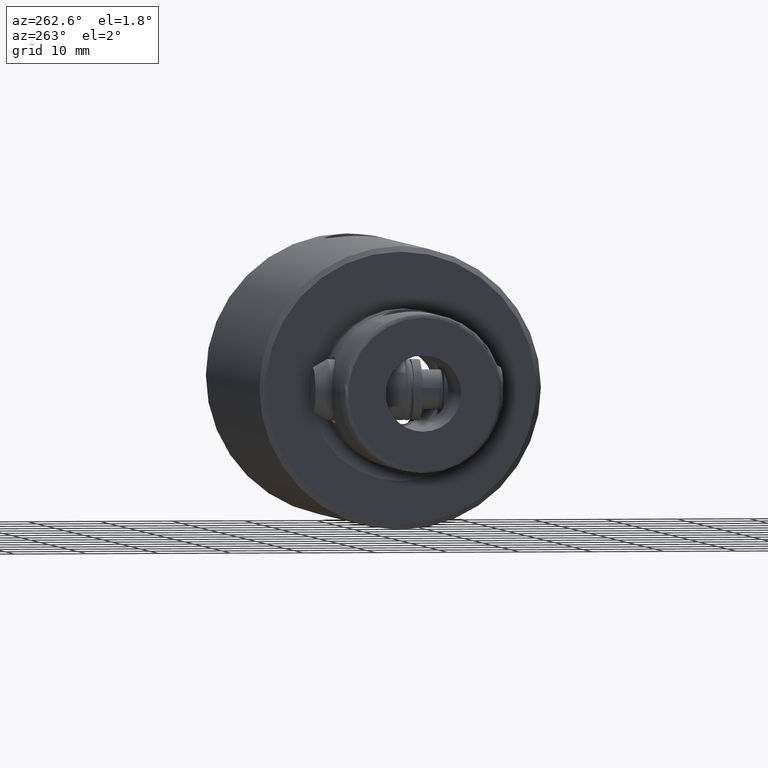
[diagram: clean part render]
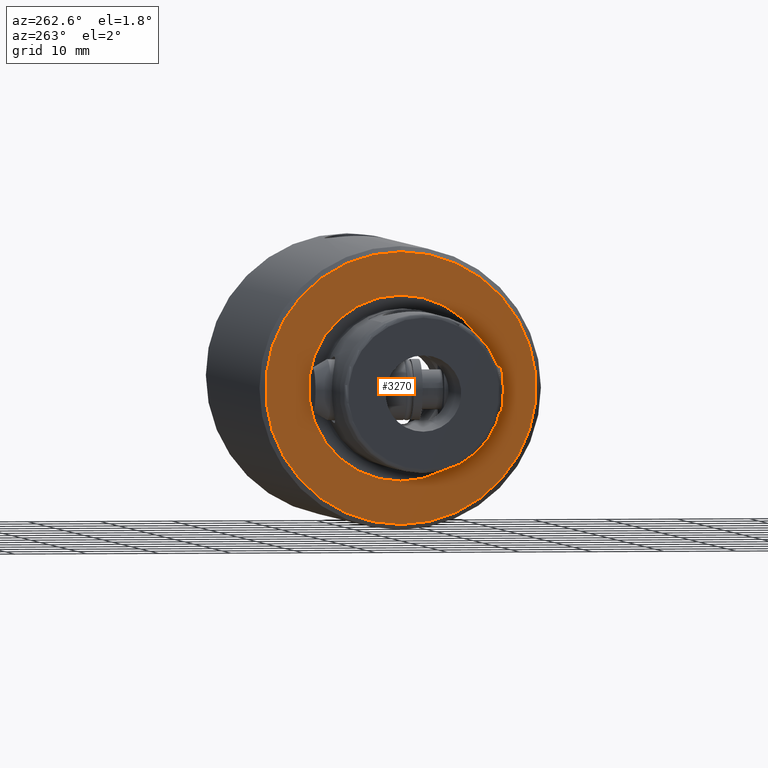
[diagram: same view with one face highlighted and labeled with its STEP entity id]
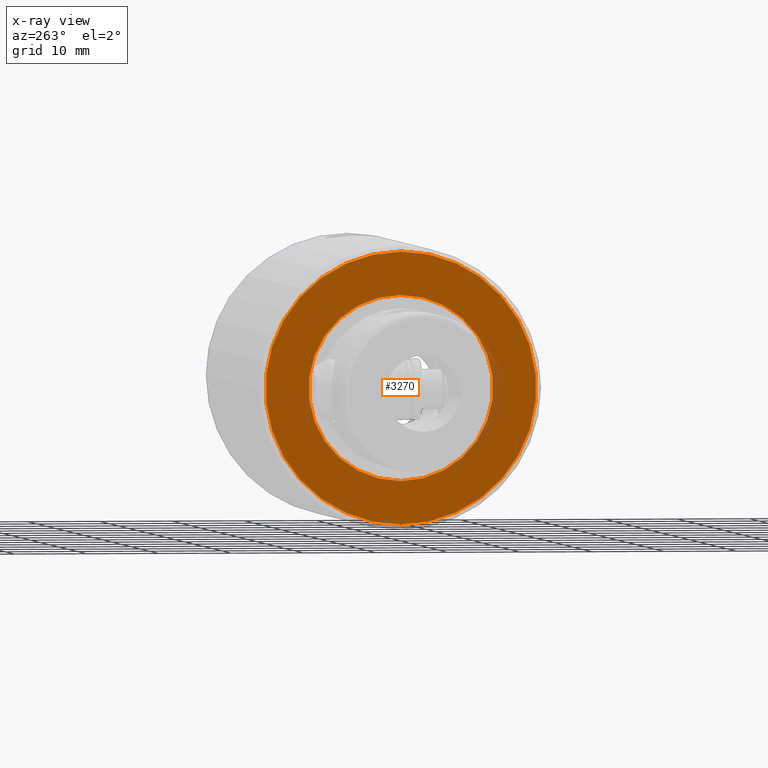
[diagram: x-ray of the same camera — body ghosted, the highlighted face saturated]
A machine part, auxiliary view. The second image highlights one B-rep face of the part: STEP entity #3270.
The next image is the same camera in x-ray: the body ghosted, the highlighted face saturated — about 3% of this face is hidden behind the body in this view.
In plain terms, the highlighted planar face has unit normal (-1, 0, 0).
Its self-contained STEP definition (entity closure, byte-faithful):
#44 = DIRECTION ( 'NONE',  ( 1.000000000000000000, 0.0000000000000000000, 0.0000000000000000000 ) ) ;
#102 = DIRECTION ( 'NONE',  ( 0.0000000000000000000, 0.0000000000000000000, 1.000000000000000000 ) ) ;
#122 = CARTESIAN_POINT ( 'NONE',  ( 0.0000000000000000000, 0.0000000000000000000, 60.00000000000000000 ) ) ;
#147 = ORIENTED_EDGE ( 'NONE', *, *, #819, .F. ) ;
#156 = CARTESIAN_POINT ( 'NONE',  ( 0.0000000000000000000, 0.0000000000000000000, 60.00000000000000000 ) ) ;
#226 = AXIS2_PLACEMENT_3D ( 'NONE', #742, #722, #422 ) ;
#311 = EDGE_CURVE ( 'NONE', #3363, #2003, #623, .T. ) ;
#422 = DIRECTION ( 'NONE',  ( 1.000000000000000000, 0.0000000000000000000, 0.0000000000000000000 ) ) ;
#536 = EDGE_CURVE ( 'NONE', #3169, #2762, #4428, .T. ) ;
#623 = CIRCLE ( 'NONE', #226, 18.75000000000000000 ) ;
#677 = CARTESIAN_POINT ( 'NONE',  ( 12.79524911219973200, 0.0000000000000000000, 60.00000000000000000 ) ) ;
#696 = CARTESIAN_POINT ( 'NONE',  ( -18.75000000000000000, 0.0000000000000000000, 60.00000000000000000 ) ) ;
#722 = DIRECTION ( 'NONE',  ( 0.0000000000000000000, 0.0000000000000000000, 1.000000000000000000 ) ) ;
#742 = CARTESIAN_POINT ( 'NONE',  ( 0.0000000000000000000, 0.0000000000000000000, 60.00000000000000000 ) ) ;
#819 = EDGE_CURVE ( 'NONE', #2762, #3169, #3747, .T. ) ;
#904 = CIRCLE ( 'NONE', #1204, 18.75000000000000000 ) ;
#1056 = CARTESIAN_POINT ( 'NONE',  ( 0.0000000000000000000, 0.0000000000000000000, 60.00000000000000000 ) ) ;
#1131 = ORIENTED_EDGE ( 'NONE', *, *, #536, .F. ) ;
#1167 = AXIS2_PLACEMENT_3D ( 'NONE', #2315, #2303, #2235 ) ;
#1204 = AXIS2_PLACEMENT_3D ( 'NONE', #1056, #3578, #1432 ) ;
#1205 = CARTESIAN_POINT ( 'NONE',  ( -12.79524911219973200, 1.566966086954841300E-015, 60.00000000000000000 ) ) ;
#1279 = DIRECTION ( 'NONE',  ( 1.000000000000000000, 0.0000000000000000000, 0.0000000000000000000 ) ) ;
#1303 = FACE_BOUND ( 'NONE', #3066, .T. ) ;
#1432 = DIRECTION ( 'NONE',  ( 1.000000000000000000, 0.0000000000000000000, 0.0000000000000000000 ) ) ;
#2003 = VERTEX_POINT ( 'NONE', #696 ) ;
#2072 = EDGE_LOOP ( 'NONE', ( #4019, #2193 ) ) ;
#2193 = ORIENTED_EDGE ( 'NONE', *, *, #311, .T. ) ;
#2235 = DIRECTION ( 'NONE',  ( 1.000000000000000000, 0.0000000000000000000, 0.0000000000000000000 ) ) ;
#2303 = DIRECTION ( 'NONE',  ( 0.0000000000000000000, 0.0000000000000000000, 1.000000000000000000 ) ) ;
#2315 = CARTESIAN_POINT ( 'NONE',  ( 0.0000000000000000000, 0.0000000000000000000, 60.00000000000000000 ) ) ;
#2329 = PLANE ( 'NONE',  #4197 ) ;
#2762 = VERTEX_POINT ( 'NONE', #1205 ) ;
#2850 = AXIS2_PLACEMENT_3D ( 'NONE', #122, #102, #44 ) ;
#2851 = FACE_OUTER_BOUND ( 'NONE', #2072, .T. ) ;
#3066 = EDGE_LOOP ( 'NONE', ( #1131, #147 ) ) ;
#3169 = VERTEX_POINT ( 'NONE', #677 ) ;
#3270 = ADVANCED_FACE ( 'NONE', ( #1303, #2851 ), #2329, .T. ) ;
#3363 = VERTEX_POINT ( 'NONE', #3446 ) ;
#3416 = DIRECTION ( 'NONE',  ( 0.0000000000000000000, 0.0000000000000000000, 1.000000000000000000 ) ) ;
#3446 = CARTESIAN_POINT ( 'NONE',  ( 18.75000000000000000, 2.342137003369313300E-015, 60.00000000000000000 ) ) ;
#3493 = EDGE_CURVE ( 'NONE', #2003, #3363, #904, .T. ) ;
#3578 = DIRECTION ( 'NONE',  ( 0.0000000000000000000, 0.0000000000000000000, 1.000000000000000000 ) ) ;
#3747 = CIRCLE ( 'NONE', #2850, 12.79524911219973200 ) ;
#4019 = ORIENTED_EDGE ( 'NONE', *, *, #3493, .T. ) ;
#4197 = AXIS2_PLACEMENT_3D ( 'NONE', #156, #3416, #1279 ) ;
#4428 = CIRCLE ( 'NONE', #1167, 12.79524911219973200 ) ;